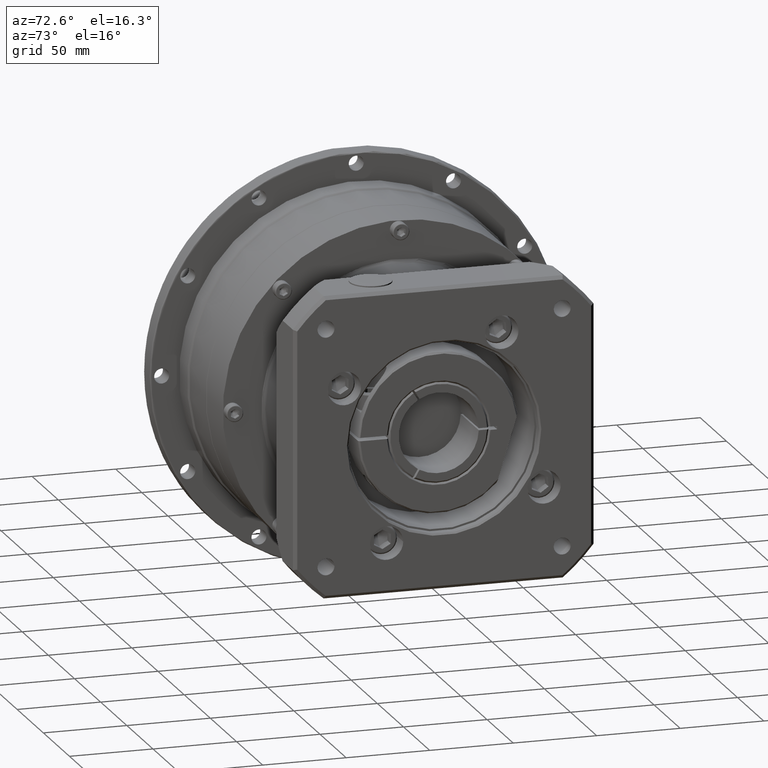
[diagram: clean part render]
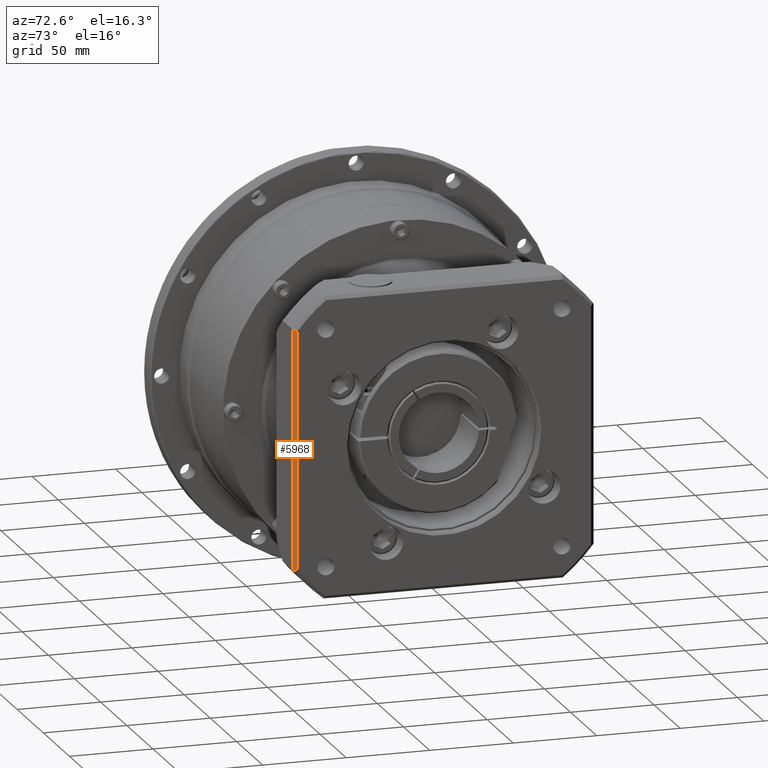
[diagram: same view with one face highlighted and labeled with its STEP entity id]
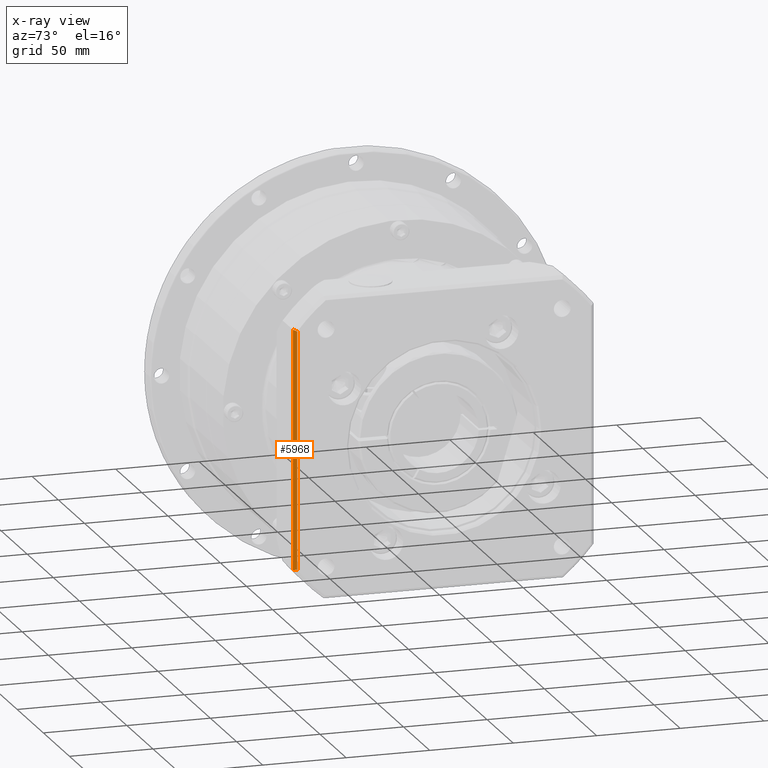
[diagram: x-ray of the same camera — body ghosted, the highlighted face saturated]
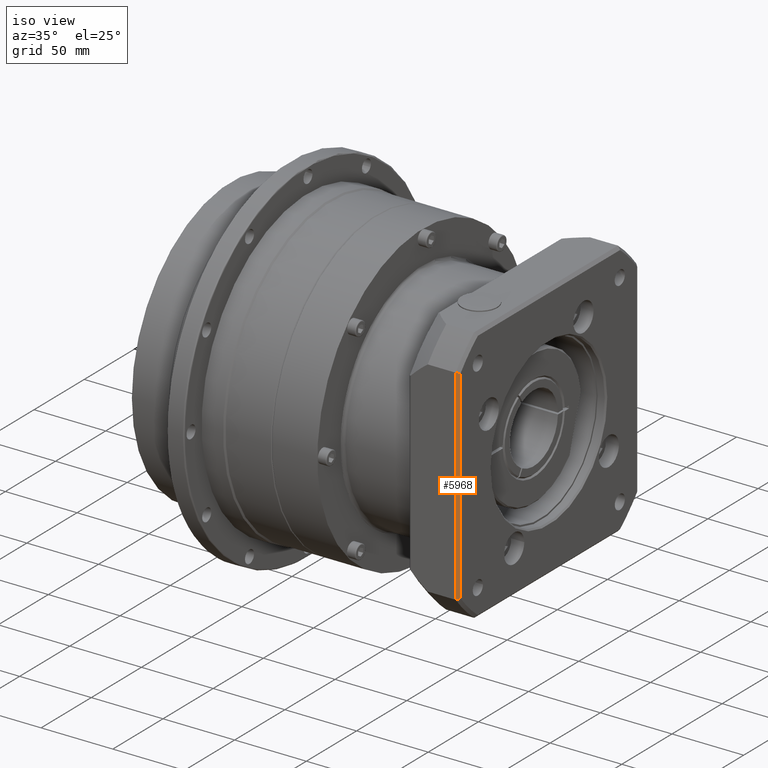
[diagram: same view with one face highlighted and labeled with its STEP entity id]
A machine part, auxiliary view. The second image highlights one B-rep face of the part: STEP entity #5968.
The next image is the same camera in x-ray: the body ghosted, the highlighted face saturated — about 0% of this face is hidden behind the body in this view.
A second angle (iso view) of the same face is appended — the face is thin or edge-on in the first view.
In plain terms, the highlighted planar face has unit normal (0.7071, -0.7071, 0).
Its self-contained STEP definition (entity closure, byte-faithful):
#22=B_SPLINE_CURVE_WITH_KNOTS('',3,(#9540,#9541,#9542,#9543),
 .UNSPECIFIED.,.F.,.F.,(4,4),(0.,0.291413405299157),.UNSPECIFIED.);
#23=B_SPLINE_CURVE_WITH_KNOTS('',3,(#9548,#9549,#9550,#9551),
 .UNSPECIFIED.,.F.,.F.,(4,4),(0.,0.291413405297485),.UNSPECIFIED.);
#281=LINE('',#9478,#524);
#286=LINE('',#9547,#529);
#524=VECTOR('',#7538,141.774468787578);
#529=VECTOR('',#7585,143.178210632764);
#1601=FACE_OUTER_BOUND('',#2104,.T.);
#2104=EDGE_LOOP('',(#4690,#4691,#4692,#4693));
#3156=VERTEX_POINT('',#9475);
#3157=VERTEX_POINT('',#9477);
#3175=VERTEX_POINT('',#9539);
#3176=VERTEX_POINT('',#9546);
#3761=EDGE_CURVE('',#3157,#3156,#281,.T.);
#3784=EDGE_CURVE('',#3157,#3175,#22,.T.);
#3786=EDGE_CURVE('',#3176,#3175,#286,.T.);
#3787=EDGE_CURVE('',#3156,#3176,#23,.T.);
#4690=ORIENTED_EDGE('',*,*,#3786,.T.);
#4691=ORIENTED_EDGE('',*,*,#3784,.F.);
#4692=ORIENTED_EDGE('',*,*,#3761,.T.);
#4693=ORIENTED_EDGE('',*,*,#3787,.T.);
#5738=PLANE('',#6504);
#5968=ADVANCED_FACE('',(#1601),#5738,.T.);
#6504=AXIS2_PLACEMENT_3D('',#9545,#7583,#7584);
#7538=DIRECTION('',(1.32434103674276E-15,2.57818457940729E-15,1.));
#7583=DIRECTION('center_axis',(0.707106781186546,-0.707106781186549,8.86601271565057E-16));
#7584=DIRECTION('ref_axis',(1.4210854715202E-15,2.8421709430404E-15,1.));
#7585=DIRECTION('',(-1.32434103674276E-15,-2.57818457940729E-15,-1.));
#9475=CARTESIAN_POINT('',(118.164604472402,-72.3281984308596,116.358296452705));
#9477=CARTESIAN_POINT('',(118.164604472402,-72.32819843086,-25.4161723348736));
#9478=CARTESIAN_POINT('',(118.164604472402,-72.3281984308599,0.471062058915548));
#9539=CARTESIAN_POINT('',(116.164604472402,-74.3281984308599,-26.1180432574662));
#9540=CARTESIAN_POINT('Ctrl Pts',(118.164604472402,-72.32819843086,-25.4161723348736));
#9541=CARTESIAN_POINT('Ctrl Pts',(117.498147121765,-72.9946557814973,-25.651213720088));
#9542=CARTESIAN_POINT('Ctrl Pts',(116.831442780257,-73.6613601230046,-25.8851732191733));
#9543=CARTESIAN_POINT('Ctrl Pts',(116.164604472402,-74.3281984308599,-26.1180432574662));
#9545=CARTESIAN_POINT('Origin',(117.164604472402,-73.3281984308599,0.471062058915557));
#9546=CARTESIAN_POINT('',(116.164604472402,-74.3281984308596,117.060167375297));
#9547=CARTESIAN_POINT('',(116.164604472402,-74.3281984308599,0.471062058915557));
#9548=CARTESIAN_POINT('Ctrl Pts',(118.164604472402,-72.3281984308596,116.358296452705));
#9549=CARTESIAN_POINT('Ctrl Pts',(117.498147121769,-72.9946557814931,116.593337837918));
#9550=CARTESIAN_POINT('Ctrl Pts',(116.831442780265,-73.6613601229964,116.827297337002));
#9551=CARTESIAN_POINT('Ctrl Pts',(116.164604472402,-74.3281984308596,117.060167375297));